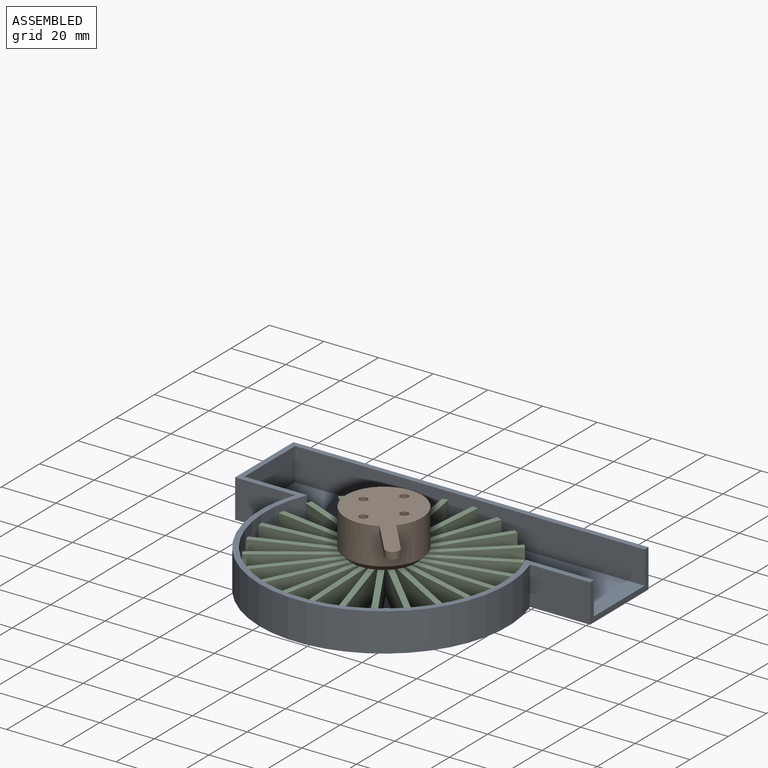
[diagram: assembled view]
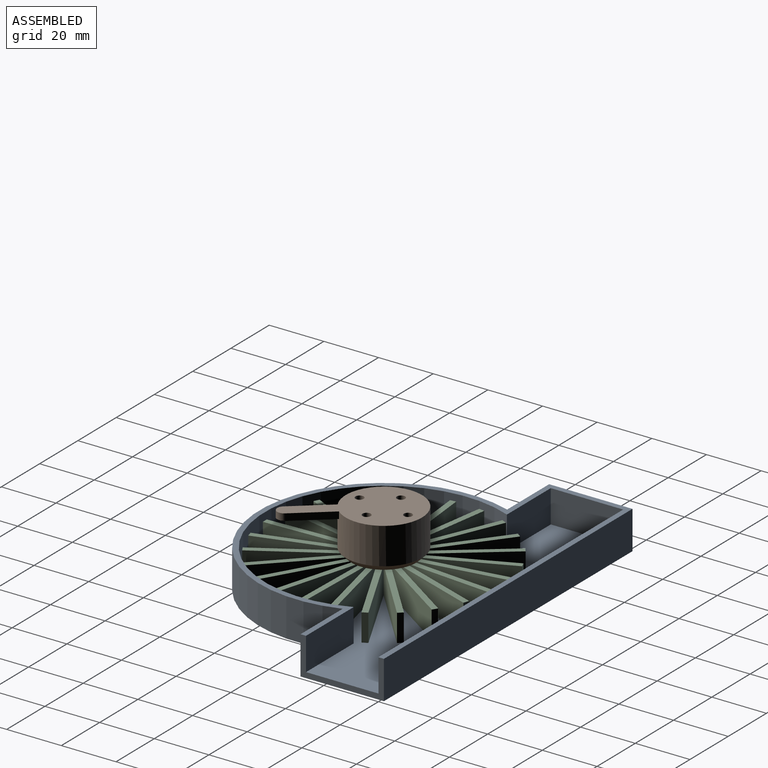
[diagram: assembled view, second angle]
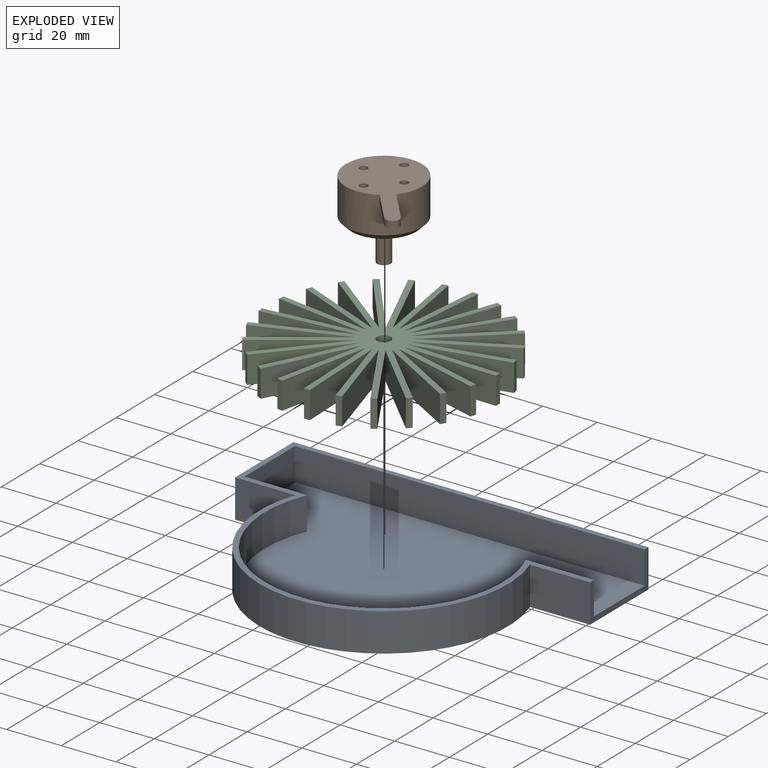
[diagram: exploded view]
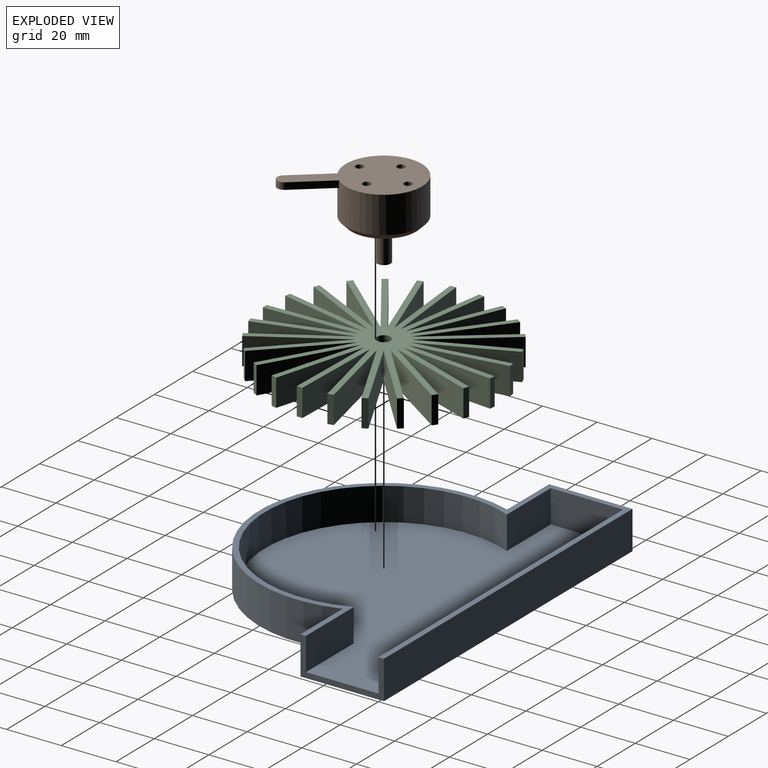
[diagram: exploded view, second angle]
ASSEMBLY  parts=3 mates=2
PART A: 14 faces, bbox 129.9x91x14 mm
  f0: plane 129.9x91mm, normal (0,0,1), area 751.6mm2, adj f3,f4,f5,f6,f7,f8,f9,f10
  f1: plane 129.9x91mm, normal (0,0,-1), area 8553.7mm2, adj f8,f9,f10,f11,f12,f13
  f2: plane 127.9x87mm, normal (0,0,1), area 7802.1mm2, adj f3,f4,f5,f6,f7,f13
  f3: plane 127.9x12mm, normal (0,-1,0), area 1534.8mm2, adj f0,f2,f4,f13
  f4: plane 26.5x12mm, normal (1,0,0), area 318mm2, adj f0,f2,f3,f5
  f5: plane 22.91x12mm, normal (0,1,0), area 274.9mm2, adj f0,f2,f4,f6
  f6: cylinder r=43.5mm len=87mm, axis (0,0,-1), area 2059.1mm2, adj f0,f2,f5,f7
  f7: plane 24.91x12mm, normal (0,1,0), area 298.9mm2, adj f0,f2,f6,f13
  f8: plane 21.99x14mm, normal (0,-1,0), area 307.9mm2, adj f0,f1,f9,f13
  f9: cylinder r=45.5mm len=91mm, axis (0,0,-1), area 2429.2mm2, adj f0,f1,f8,f10
  f10: plane 21.99x14mm, normal (0,-1,0), area 307.9mm2, adj f0,f1,f9,f11
  f11: plane 30.5x14mm, normal (-1,0,0), area 427mm2, adj f0,f1,f10,f12
  f12: plane 129.9x14mm, normal (0,1,0), area 1818.6mm2, adj f0,f1,f11,f13
  f13: plane 30.5x14mm, normal (1,0,0), area 109mm2, adj f0,f1,f2,f3,f7,f8,f12
PART B: 18 faces, bbox 37.7x37.7x28.6 mm
  f0: plane 37.66x37.66mm, normal (0,0,-1), area 673.5mm2, adj f1,f3,f4,f5,f7,f9,f11,f13
  f1: cylinder r=13.95mm len=27.9mm, axis (0,0,-1), area 1160.1mm2, adj f0,f2,f3,f4,f16
  f2: plane 15.78x15.78mm, normal (0,0,1), area 90.4mm2, adj f1,f3,f4,f5
  f3: plane 11.51x11.51mm, normal (0.71,-0.71,0), area 40.7mm2, adj f0,f1,f2,f5
  f4: plane 11.51x11.51mm, normal (-0.71,0.71,0), area 40.7mm2, adj f0,f1,f2,f5
  f5: cylinder r=2.5mm len=4.27mm, axis (0,0,1), area 19.6mm2, adj f0,f2,f3,f4
  f6: plane 3x3mm, normal (0,0,-1), area 7.1mm2, adj f7
  f7: cylinder r=1.5mm len=10mm, axis (0,0,1), area 94.2mm2, adj f0,f6
  f8: plane 3x3mm, normal (0,0,-1), area 7.1mm2, adj f9
  f9: cylinder r=1.5mm len=10mm, axis (0,0,1), area 94.2mm2, adj f0,f8
  f10: plane 3x3mm, normal (0,0,-1), area 7.1mm2, adj f11
  f11: cylinder r=1.5mm len=10mm, axis (0,0,1), area 94.2mm2, adj f0,f10
  f12: plane 3x3mm, normal (0,0,-1), area 7.1mm2, adj f13
  f13: cylinder r=1.5mm len=10mm, axis (0,0,1), area 94.2mm2, adj f0,f12
  f14: cylinder r=2.5mm len=13.1mm, axis (0,0,-1), area 205.8mm2, adj f15,f17
  f15: plane 23.66x23.66mm, normal (0,0,1), area 419.9mm2, adj f14,f16
  f16: cone r=13.95mm half-angle=45deg, axis (0,0,-1), area 243mm2, adj f1,f15
  f17: plane 5x5mm, normal (0,0,1), area 19.6mm2, adj f14
PART C: 78 faces, bbox 85x84.8x10 mm
  f0: plane 33.11x10mm, normal (-0.97,0.25,0), area 341.9mm2, adj f1,f74,f76,f77
  f1: plane 34.19x10mm, normal (1,0,0), area 341.9mm2, adj f0,f2,f76,f77
  f2: plane 10x2.1mm, normal (0,1,0), area 21mm2, adj f1,f3,f76,f77
  f3: plane 34.19x10mm, normal (-1,0,0), area 341.9mm2, adj f2,f4,f76,f77
  f4: plane 33.11x10mm, normal (0.97,0.25,0), area 341.9mm2, adj f3,f5,f76,f77
  f5: plane 10x2.03mm, normal (-0.25,0.97,0), area 21mm2, adj f4,f6,f76,f77
  f6: plane 33.11x10mm, normal (-0.97,-0.25,0), area 341.9mm2, adj f5,f7,f76,f77
  f7: plane 29.96x16.47mm, normal (0.88,0.48,0), area 341.9mm2, adj f6,f8,f76,f77
  f8: plane 10x1.84mm, normal (-0.48,0.88,0), area 21mm2, adj f7,f9,f76,f77
  f9: plane 29.96x16.47mm, normal (-0.88,-0.48,0), area 341.9mm2, adj f8,f10,f76,f77
  f10: plane 24.92x23.4mm, normal (0.73,0.68,0), area 341.9mm2, adj f9,f11,f76,f77
  f11: plane 10x1.53mm, normal (-0.68,0.73,0), area 21mm2, adj f10,f12,f76,f77
  f12: plane 24.92x23.4mm, normal (-0.73,-0.68,0), area 341.9mm2, adj f11,f13,f76,f77
  f13: plane 28.87x18.32mm, normal (0.54,0.84,0), area 341.9mm2, adj f12,f14,f76,f77
  f14: plane 10x1.77mm, normal (-0.84,0.54,0), area 21mm2, adj f13,f15,f76,f77
  f15: plane 28.87x18.32mm, normal (-0.54,-0.84,0), area 341.9mm2, adj f14,f16,f76,f77
  f16: plane 32.52x10.56mm, normal (0.31,0.95,0), area 341.9mm2, adj f15,f17,f76,f77
  f17: plane 10x2mm, normal (-0.95,0.31,0), area 21mm2, adj f16,f18,f76,f77
  f18: plane 32.52x10.56mm, normal (-0.31,-0.95,0), area 341.9mm2, adj f17,f19,f76,f77
  f19: plane 34.12x10mm, normal (0.06,1,0), area 341.9mm2, adj f18,f20,f76,f77
  f20: plane 10x2.1mm, normal (-1,0.06,0), area 21mm2, adj f19,f21,f76,f77
  f21: plane 34.12x10mm, normal (-0.06,-1,0), area 341.9mm2, adj f20,f22,f76,f77
  f22: plane 33.58x10mm, normal (-0.19,0.98,0), area 341.9mm2, adj f21,f23,f76,f77
  f23: plane 10x2.06mm, normal (-0.98,-0.19,0), area 21mm2, adj f22,f24,f76,f77
  f24: plane 33.58x10mm, normal (0.19,-0.98,0), area 341.9mm2, adj f23,f25,f76,f77
  f25: plane 30.93x14.56mm, normal (-0.43,0.9,0), area 341.9mm2, adj f24,f26,f76,f77
  f26: plane 10x1.9mm, normal (-0.9,-0.43,0), area 21mm2, adj f25,f27,f76,f77
  f27: plane 30.93x14.56mm, normal (0.43,-0.9,0), area 341.9mm2, adj f26,f28,f76,f77
  f28: plane 26.34x21.79mm, normal (-0.64,0.77,0), area 341.9mm2, adj f27,f29,f76,f77
  f29: plane 10x1.62mm, normal (-0.77,-0.64,0), area 21mm2, adj f28,f30,f76,f77
  f30: plane 26.34x21.79mm, normal (0.64,-0.77,0), area 341.9mm2, adj f29,f31,f76,f77
  f31: plane 27.66x20.1mm, normal (-0.81,0.59,0), area 341.9mm2, adj f30,f32,f76,f77
  f32: plane 10x1.7mm, normal (-0.59,-0.81,0), area 21mm2, adj f31,f33,f76,f77
  f33: plane 27.66x20.1mm, normal (0.81,-0.59,0), area 341.9mm2, adj f32,f34,f76,f77
  f34: plane 31.79x12.59mm, normal (-0.93,0.37,0), area 341.9mm2, adj f33,f35,f76,f77
  f35: plane 10x1.95mm, normal (-0.37,-0.93,0), area 21mm2, adj f34,f36,f76,f77
  f36: plane 31.79x12.59mm, normal (0.93,-0.37,0), area 341.9mm2, adj f35,f37,f76,f77
  f37: plane 33.92x10mm, normal (-0.99,0.13,0), area 341.9mm2, adj f36,f38,f76,f77
  f38: plane 10x2.08mm, normal (-0.13,-0.99,0), area 21mm2, adj f37,f39,f76,f77
  f39: plane 33.92x10mm, normal (0.99,-0.13,0), area 341.9mm2, adj f38,f40,f76,f77
  f40: plane 33.92x10mm, normal (-0.99,-0.13,0), area 341.9mm2, adj f39,f41,f76,f77
  f41: plane 10x2.08mm, normal (0.13,-0.99,0), area 21mm2, adj f40,f42,f76,f77
  f42: plane 33.92x10mm, normal (0.99,0.13,0), area 341.9mm2, adj f41,f43,f76,f77
  f43: plane 31.79x12.59mm, normal (-0.93,-0.37,0), area 341.9mm2, adj f42,f44,f76,f77
  f44: plane 10x1.95mm, normal (0.37,-0.93,0), area 21mm2, adj f43,f45,f76,f77
  f45: plane 31.79x12.59mm, normal (0.93,0.37,0), area 341.9mm2, adj f44,f46,f76,f77
  f46: plane 27.66x20.1mm, normal (-0.81,-0.59,0), area 341.9mm2, adj f45,f47,f76,f77
  f47: plane 10x1.7mm, normal (0.59,-0.81,0), area 21mm2, adj f46,f48,f76,f77
  f48: plane 27.66x20.1mm, normal (0.81,0.59,0), area 341.9mm2, adj f47,f49,f76,f77
  f49: plane 26.34x21.79mm, normal (-0.64,-0.77,0), area 341.9mm2, adj f48,f50,f76,f77
  f50: plane 10x1.62mm, normal (0.77,-0.64,0), area 21mm2, adj f49,f51,f76,f77
  f51: plane 26.34x21.79mm, normal (0.64,0.77,0), area 341.9mm2, adj f50,f52,f76,f77
  f52: plane 30.93x14.56mm, normal (-0.43,-0.9,0), area 341.9mm2, adj f51,f53,f76,f77
  f53: plane 10x1.9mm, normal (0.9,-0.43,0), area 21mm2, adj f52,f54,f76,f77
  f54: plane 30.93x14.56mm, normal (0.43,0.9,0), area 341.9mm2, adj f53,f55,f76,f77
  f55: plane 33.58x10mm, normal (-0.19,-0.98,0), area 341.9mm2, adj f54,f56,f76,f77
  f56: plane 10x2.06mm, normal (0.98,-0.19,0), area 21mm2, adj f55,f57,f76,f77
  f57: plane 33.58x10mm, normal (0.19,0.98,0), area 341.9mm2, adj f56,f58,f76,f77
  f58: plane 34.12x10mm, normal (0.06,-1,0), area 341.9mm2, adj f57,f59,f76,f77
  f59: plane 10x2.1mm, normal (1,0.06,0), area 21mm2, adj f58,f60,f76,f77
  f60: plane 34.12x10mm, normal (-0.06,1,0), area 341.9mm2, adj f59,f61,f76,f77
  f61: plane 32.52x10.56mm, normal (0.31,-0.95,0), area 341.9mm2, adj f60,f62,f76,f77
  f62: plane 10x2mm, normal (0.95,0.31,0), area 21mm2, adj f61,f63,f76,f77
  f63: plane 32.52x10.56mm, normal (-0.31,0.95,0), area 341.9mm2, adj f62,f64,f76,f77
  f64: plane 28.87x18.32mm, normal (0.54,-0.84,0), area 341.9mm2, adj f63,f65,f76,f77
  f65: plane 10x1.77mm, normal (0.84,0.54,0), area 21mm2, adj f64,f66,f76,f77
  f66: plane 28.87x18.32mm, normal (-0.54,0.84,0), area 341.9mm2, adj f65,f67,f76,f77
  f67: plane 24.92x23.4mm, normal (0.73,-0.68,0), area 341.9mm2, adj f66,f68,f76,f77
  f68: plane 10x1.53mm, normal (0.68,0.73,0), area 21mm2, adj f67,f69,f76,f77
  f69: plane 24.92x23.4mm, normal (-0.73,0.68,0), area 341.9mm2, adj f68,f70,f76,f77
  f70: plane 29.96x16.47mm, normal (0.88,-0.48,0), area 341.9mm2, adj f69,f71,f76,f77
  f71: plane 10x1.84mm, normal (0.48,0.88,0), area 21mm2, adj f70,f72,f76,f77
  f72: plane 29.96x16.47mm, normal (-0.88,0.48,0), area 341.9mm2, adj f71,f73,f76,f77
  f73: plane 33.11x10mm, normal (0.97,-0.25,0), area 341.9mm2, adj f72,f74,f76,f77
  f74: plane 10x2.03mm, normal (0.25,0.97,0), area 21mm2, adj f0,f73,f76,f77
  f75: cylinder r=2.5mm len=10mm, axis (0,0,-1), area 157.1mm2, adj f76,f77
  f76: plane 84.96x84.8mm, normal (0,0,1), area 1993.4mm2, adj f0,f1,f2,f3,f4,f5,f6,f7
  f77: plane 84.96x84.8mm, normal (0,0,-1), area 1993.4mm2, adj f0,f1,f2,f3,f4,f5,f6,f7
PLACE A at identity fixed
PLACE B rot(axis=(1,-0.04,0),180deg) t=(0,0,19.5)mm
PLACE C rot(axis=(0,0,-1),5.1deg) t=(0,0,-1)mm
MATE revolute C.f75 <-> A.f6  axis (0,0,-1) through (0,0,-6)mm
MATE revolute B.f1 <-> C.f75  axis (0,0,-1) through (0,0,4)mm
